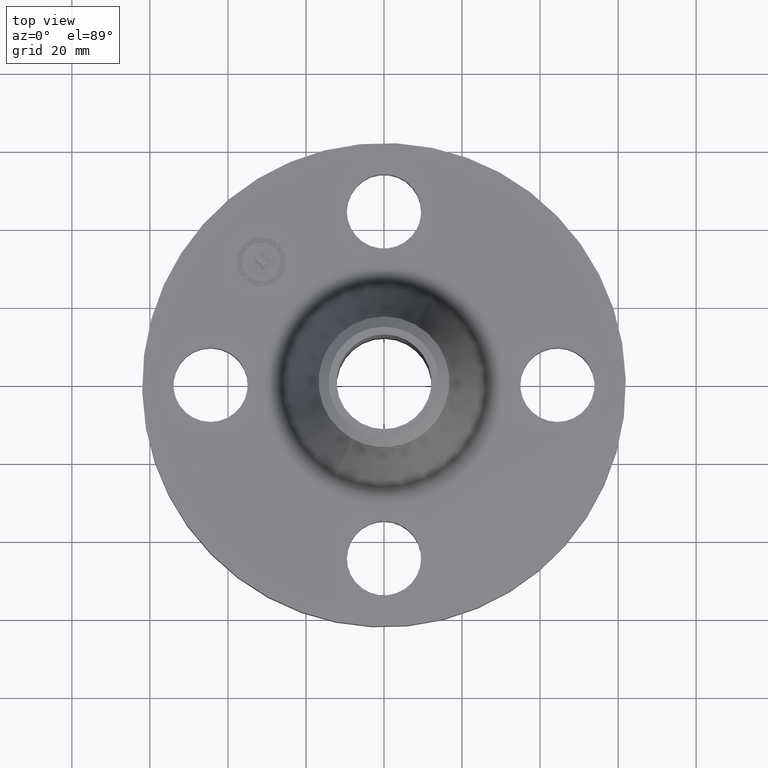
[diagram: clean part render]
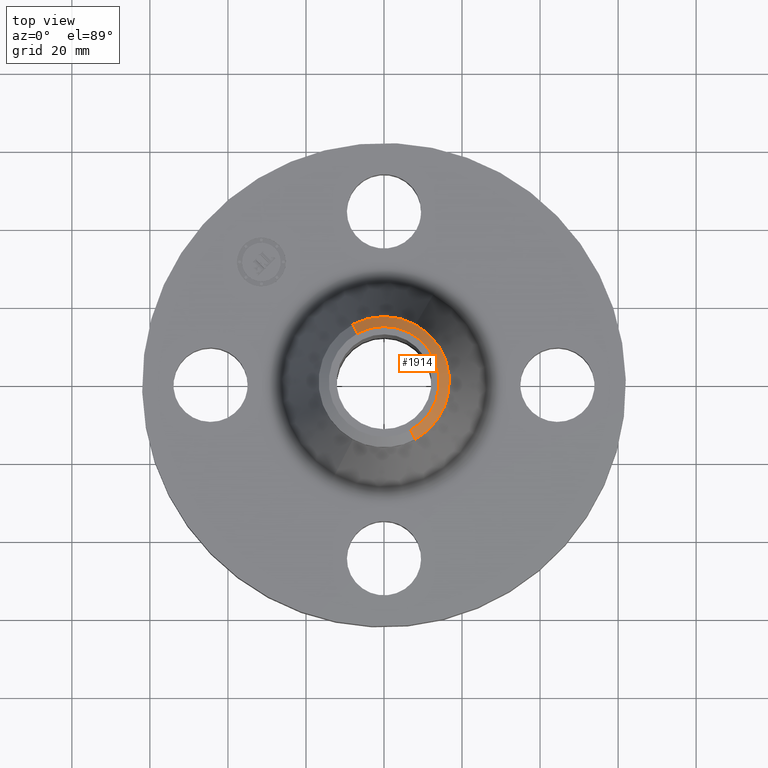
[diagram: same view with one face highlighted and labeled with its STEP entity id]
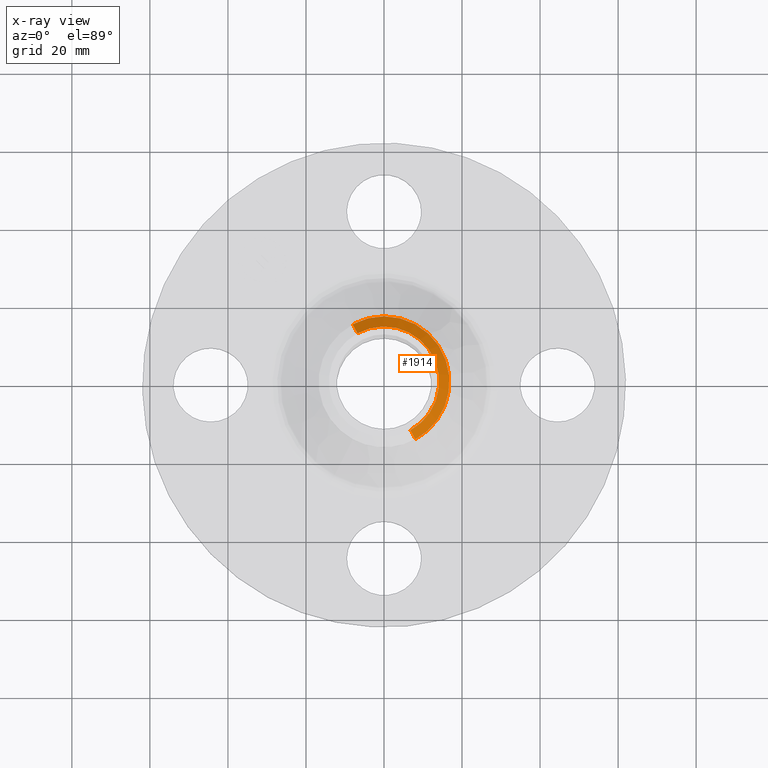
[diagram: x-ray of the same camera — body ghosted, the highlighted face saturated]
A machine part, top view. The second image highlights one B-rep face of the part: STEP entity #1914.
The next image is the same camera in x-ray: the body ghosted, the highlighted face saturated — about 0% of this face is hidden behind the body in this view.
In plain terms, the highlighted conical surface has half-angle 52.5 deg.
Its self-contained STEP definition (entity closure, byte-faithful):
#1182=AXIS2_PLACEMENT_3D('Circle Axis2P3D',#1180,#1181,$) ;
#1900=AXIS2_PLACEMENT_3D('Cone Axis2P3D',#1897,#1898,#1899) ;
#1904=AXIS2_PLACEMENT_3D('Circle Axis2P3D',#1902,#1903,$) ;
#1163=CARTESIAN_POINT('Vertex',(0.31642085548,0.57920449085,2.30114959954)) ;
#1177=CARTESIAN_POINT('Vertex',(-0.31642085548,0.57920449085,2.30114959954)) ;
#1180=CARTESIAN_POINT('Axis2P3D Location',(0.,0.,2.30114959954)) ;
#1206=CARTESIAN_POINT('Control Point',(0.31642085548,0.57920449085,2.30114959956)) ;
#1207=CARTESIAN_POINT('Control Point',(0.440462863734,0.511440032896,2.30114959956)) ;
#1208=CARTESIAN_POINT('Control Point',(0.546364388821,0.410469643241,2.30114959956)) ;
#1209=CARTESIAN_POINT('Control Point',(0.622162042478,0.282690230275,2.30114959955)) ;
#1210=CARTESIAN_POINT('Control Point',(0.697837957528,-1.62812093349E-013,2.30114959955)) ;
#1211=CARTESIAN_POINT('Control Point',(0.622162042478,-0.282690230275,2.30114959955)) ;
#1212=CARTESIAN_POINT('Control Point',(0.54636438882,-0.410469643241,2.30114959954)) ;
#1213=CARTESIAN_POINT('Control Point',(0.440462863733,-0.511440032896,2.30114959954)) ;
#1214=CARTESIAN_POINT('Control Point',(0.31642085548,-0.57920449085,2.30114959954)) ;
#1215=CARTESIAN_POINT('Vertex',(0.316420855481,-0.579204490851,2.30114959956)) ;
#1863=CARTESIAN_POINT('Line Origine',(0.291788009054,-0.534114367917,2.34057479979)) ;
#1867=CARTESIAN_POINT('Vertex',(0.267155162633,-0.489024244991,2.38000000001)) ;
#1874=CARTESIAN_POINT('Vertex',(-0.267155162633,0.489024244991,2.38000000001)) ;
#1877=CARTESIAN_POINT('Line Origine',(-0.291788009054,0.534114367917,2.34057479979)) ;
#1897=CARTESIAN_POINT('Axis2P3D Location',(0.,0.,2.38000000001)) ;
#1902=CARTESIAN_POINT('Axis2P3D Location',(0.,0.,2.38000000001)) ;
#1181=DIRECTION('Axis2P3D Direction',(-0.,0.,-0.0393700787402)) ;
#1864=DIRECTION('Vector Direction',(0.014974561121,-0.02741075027,-0.023966985394)) ;
#1878=DIRECTION('Vector Direction',(-0.014974561121,0.02741075027,-0.023966985394)) ;
#1898=DIRECTION('Axis2P3D Direction',(-0.,-0.,-0.0393700787402)) ;
#1899=DIRECTION('Axis2P3D XDirection',(-0.0188750212049,0.0345504945626,0.)) ;
#1903=DIRECTION('Axis2P3D Direction',(-0.,0.,-0.0393700787402)) ;
#1865=VECTOR('Line Direction',#1864,0.0393700787402) ;
#1879=VECTOR('Line Direction',#1878,0.0393700787402) ;
#1908=ORIENTED_EDGE('',*,*,#1881,.F.) ;
#1909=ORIENTED_EDGE('',*,*,#1906,.F.) ;
#1910=ORIENTED_EDGE('',*,*,#1869,.T.) ;
#1911=ORIENTED_EDGE('',*,*,#1217,.T.) ;
#1912=ORIENTED_EDGE('',*,*,#1184,.F.) ;
#1914=ADVANCED_FACE('PartBody',(#1913),#1901,.T.) ;
#1205=B_SPLINE_CURVE_WITH_KNOTS('',5,(#1206,#1207,#1208,#1209,#1210,#1211,#1212,#1213,#1214),.UNSPECIFIED.,.F.,.U.,(6,3,6),(-17.9508296225,0.,17.9508296225),.UNSPECIFIED.) ;
#1183=CIRCLE('generated circle',#1182,0.660000000003) ;
#1905=CIRCLE('generated circle',#1904,0.557240157482) ;
#1901=CONICAL_SURFACE('Cone',#1900,0.557240157482,0.916297857297) ;
#1184=EDGE_CURVE('',#1178,#1164,#1183,.T.) ;
#1217=EDGE_CURVE('',#1216,#1164,#1205,.F.) ;
#1869=EDGE_CURVE('',#1868,#1216,#1866,.T.) ;
#1881=EDGE_CURVE('',#1875,#1178,#1880,.T.) ;
#1906=EDGE_CURVE('',#1868,#1875,#1905,.F.) ;
#1907=EDGE_LOOP('',(#1908,#1909,#1910,#1911,#1912)) ;
#1913=FACE_OUTER_BOUND('',#1907,.T.) ;
#1866=LINE('Line',#1863,#1865) ;
#1880=LINE('Line',#1877,#1879) ;
#1164=VERTEX_POINT('',#1163) ;
#1178=VERTEX_POINT('',#1177) ;
#1216=VERTEX_POINT('',#1215) ;
#1868=VERTEX_POINT('',#1867) ;
#1875=VERTEX_POINT('',#1874) ;